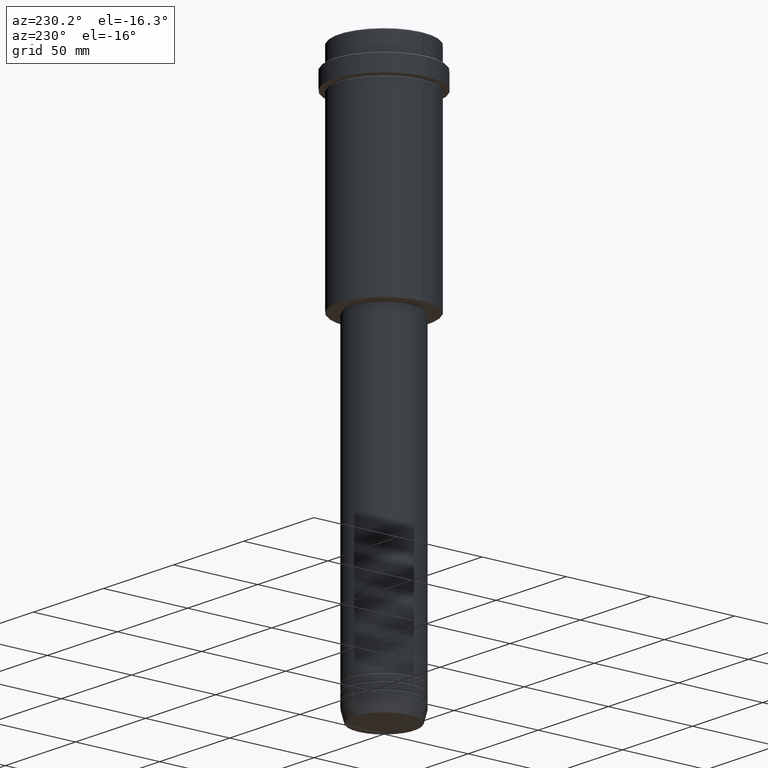
[diagram: clean part render]
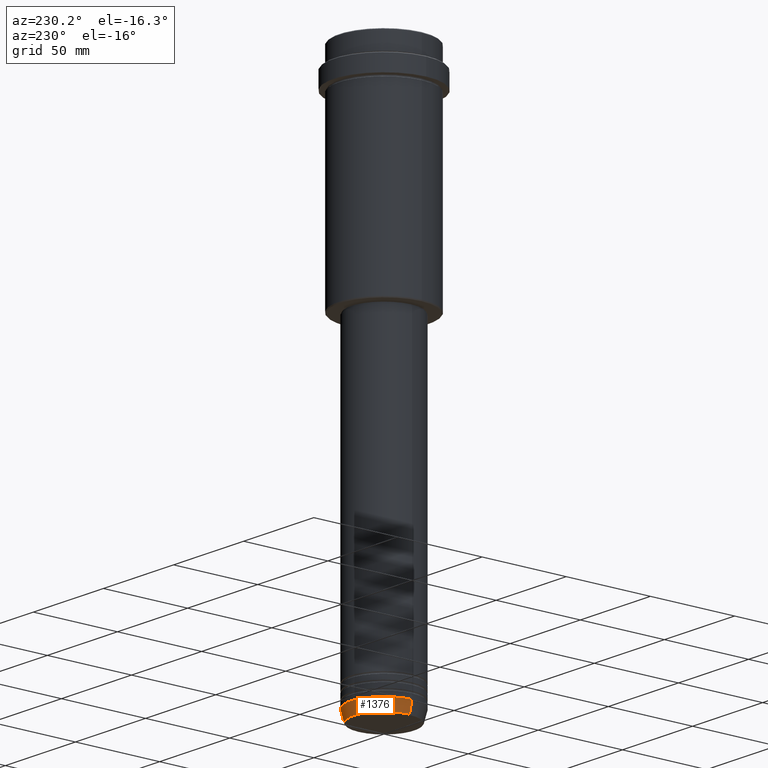
[diagram: same view with one face highlighted and labeled with its STEP entity id]
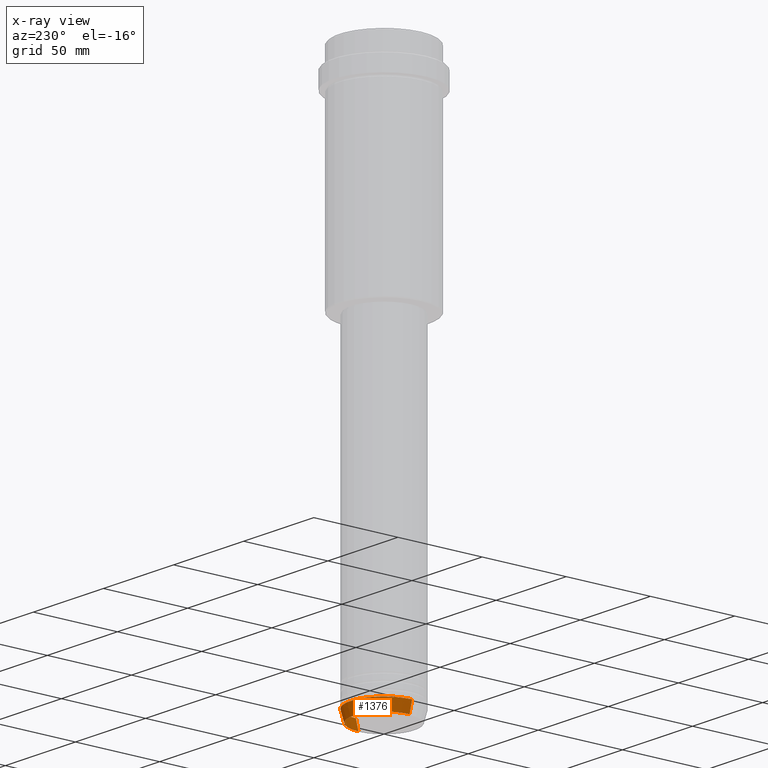
[diagram: x-ray of the same camera — body ghosted, the highlighted face saturated]
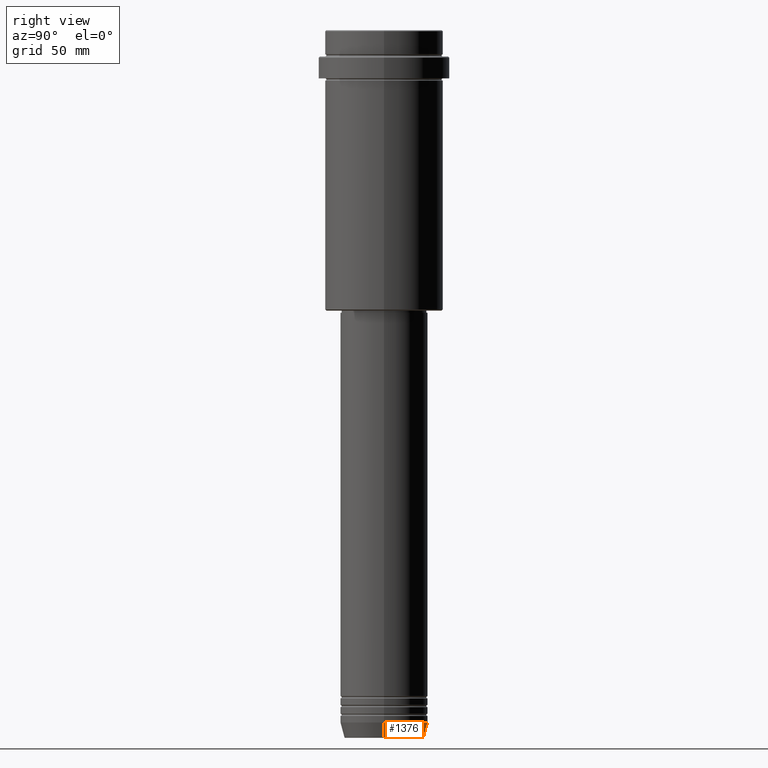
[diagram: same view with one face highlighted and labeled with its STEP entity id]
A machine part, auxiliary view. The second image highlights one B-rep face of the part: STEP entity #1376.
The next image is the same camera in x-ray: the body ghosted, the highlighted face saturated — about 0% of this face is hidden behind the body in this view.
A second angle (right view) of the same face is appended — the face is thin or edge-on in the first view.
In plain terms, the highlighted conical surface has half-angle 15 deg.
Its self-contained STEP definition (entity closure, byte-faithful):
#93 = DIRECTION ( 'NONE',  ( 1.000000000000000000, 0.000000000000000000, 0.000000000000000000 ) ) ;
#120 = VECTOR ( 'NONE', #840, 1000.000000000000000 ) ;
#159 = CIRCLE ( 'NONE', #643, 20.00000000000000000 ) ;
#163 = AXIS2_PLACEMENT_3D ( 'NONE', #1092, #201, #1225 ) ;
#188 = CARTESIAN_POINT ( 'NONE',  ( -20.00000000000000000, 2.449293598294706513E-15, -316.0000000000000000 ) ) ;
#199 = DIRECTION ( 'NONE',  ( 1.000000000000000000, 0.000000000000000000, 0.000000000000000000 ) ) ;
#201 = DIRECTION ( 'NONE',  ( -0.000000000000000000, -0.000000000000000000, 1.000000000000000000 ) ) ;
#289 = CIRCLE ( 'NONE', #163, 18.22365507213718772 ) ;
#309 = VECTOR ( 'NONE', #513, 1000.000000000000000 ) ;
#346 = CARTESIAN_POINT ( 'NONE',  ( -18.22365507213718772, 2.340523841790264718E-15, -322.6294095225512706 ) ) ;
#377 = EDGE_CURVE ( 'NONE', #470, #1210, #159, .T. ) ;
#414 = FACE_OUTER_BOUND ( 'NONE', #1178, .T. ) ;
#424 = DIRECTION ( 'NONE',  ( -0.000000000000000000, -0.000000000000000000, 1.000000000000000000 ) ) ;
#428 = EDGE_CURVE ( 'NONE', #725, #1210, #721, .T. ) ;
#443 = CARTESIAN_POINT ( 'NONE',  ( 20.00000000000000000, 0.000000000000000000, -316.0000000000000000 ) ) ;
#470 = VERTEX_POINT ( 'NONE', #443 ) ;
#513 = DIRECTION ( 'NONE',  ( -0.2588190451025213501, 3.169619151431772337E-17, 0.9659258262890680902 ) ) ;
#609 = CARTESIAN_POINT ( 'NONE',  ( -20.00000000000000000, 2.449293598294706513E-15, -316.0000000000000000 ) ) ;
#621 = CARTESIAN_POINT ( 'NONE',  ( 0.000000000000000000, 0.000000000000000000, -316.0000000000000000 ) ) ;
#643 = AXIS2_PLACEMENT_3D ( 'NONE', #1184, #1058, #93 ) ;
#650 = LINE ( 'NONE', #1100, #120 ) ;
#721 = LINE ( 'NONE', #609, #309 ) ;
#725 = VERTEX_POINT ( 'NONE', #346 ) ;
#840 = DIRECTION ( 'NONE',  ( 0.2588190451025213501, 0.000000000000000000, 0.9659258262890680902 ) ) ;
#863 = AXIS2_PLACEMENT_3D ( 'NONE', #621, #424, #199 ) ;
#881 = EDGE_CURVE ( 'NONE', #1354, #470, #650, .T. ) ;
#903 = EDGE_CURVE ( 'NONE', #1354, #725, #289, .T. ) ;
#1058 = DIRECTION ( 'NONE',  ( -0.000000000000000000, -0.000000000000000000, 1.000000000000000000 ) ) ;
#1072 = ORIENTED_EDGE ( 'NONE', *, *, #903, .T. ) ;
#1090 = CARTESIAN_POINT ( 'NONE',  ( 18.22365507213718772, 0.000000000000000000, -322.6294095225512706 ) ) ;
#1092 = CARTESIAN_POINT ( 'NONE',  ( 0.000000000000000000, 0.000000000000000000, -322.6294095225512706 ) ) ;
#1100 = CARTESIAN_POINT ( 'NONE',  ( 20.00000000000000000, 0.000000000000000000, -316.0000000000000000 ) ) ;
#1134 = ORIENTED_EDGE ( 'NONE', *, *, #377, .F. ) ;
#1138 = ORIENTED_EDGE ( 'NONE', *, *, #881, .F. ) ;
#1178 = EDGE_LOOP ( 'NONE', ( #1072, #1197, #1134, #1138 ) ) ;
#1184 = CARTESIAN_POINT ( 'NONE',  ( 0.000000000000000000, 0.000000000000000000, -316.0000000000000000 ) ) ;
#1197 = ORIENTED_EDGE ( 'NONE', *, *, #428, .T. ) ;
#1210 = VERTEX_POINT ( 'NONE', #188 ) ;
#1225 = DIRECTION ( 'NONE',  ( 1.000000000000000000, 0.000000000000000000, 0.000000000000000000 ) ) ;
#1335 = CONICAL_SURFACE ( 'NONE', #863, 20.00000000000000000, 0.2617993877991500740 ) ;
#1354 = VERTEX_POINT ( 'NONE', #1090 ) ;
#1376 = ADVANCED_FACE ( 'NONE', ( #414 ), #1335, .T. ) ;